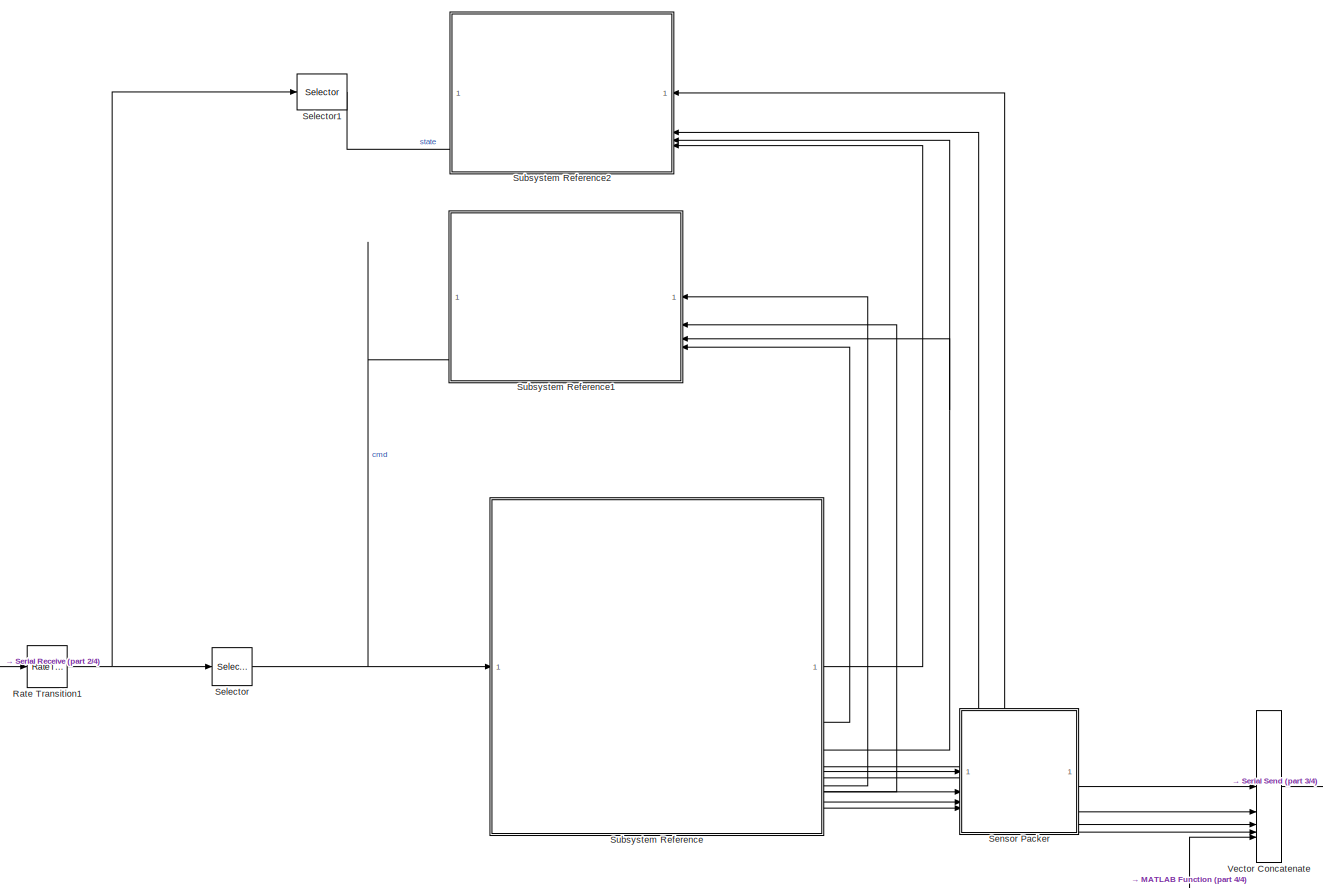
[diagram: root canvas - part 1/4, most of the canvas]
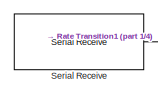
[diagram: root canvas - part 2/4, middle left region]
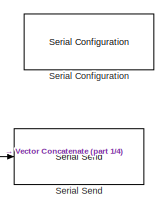
[diagram: root canvas - part 3/4, bottom right region]
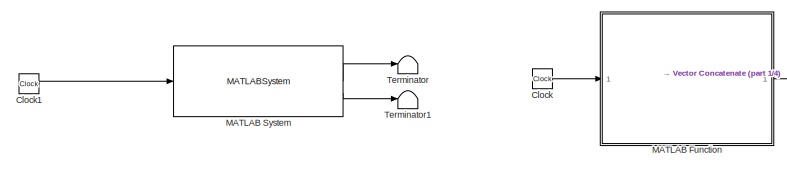
[diagram: root canvas - part 4/4, bottom center region]
MODEL slx_febe281cedd2
KIND model
CONFIG AbsTol = auto
CONFIG EnableMultiTasking = off
CONFIG FixedStep = 0.0025
CONFIG MaxStep = auto
CONFIG MinStep = auto
CONFIG RelTol = 1e-3
CONFIG SampleTimeConstraint = Unconstrained
CONFIG SolverName = ode2
CONFIG StartTime = 0.0
CONFIG StopTime = 100
BLOCK [Clock] Clock
BLOCK [Clock] Clock1
  Commented = on
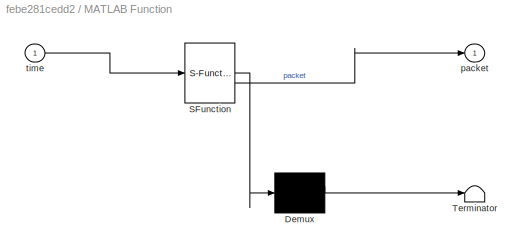
BLOCK [SubSystem] MATLAB Function
  ErrorFcn = Stateflow.Translate.translate
  PermitHierarchicalResolution = ExplicitOnly
  SFBlockType = MATLAB Function
  TreatAsAtomicUnit = on
BLOCK [Demux] MATLAB Function/ Demux 
  Outputs = 1
BLOCK [S-Function] MATLAB Function/ SFunction 
  EnableBusSupport = off
  FunctionName = sf_sfun
  PortCounts = [1 2]
  SFcnIsStateOwnerBlock = off
  SFunctionDeploymentMode = off
  Tag = Stateflow S-Function 2
BLOCK [Terminator] MATLAB Function/ Terminator 
BLOCK [Outport] MATLAB Function/packet
BLOCK [Inport] MATLAB Function/time
BLOCK [MATLABSystem] MATLAB System
  Commented = on
  FileName = wall_step_log.mat
  MaskType = WallStepLogger
  MaxSamples = 50000
  SimulateUsing = Code generation
  System = WallStepLogger
  Ts = 0.0025
BLOCK [RateTransition] Rate Transition1
  OutPortSampleTime = 0.01
BLOCK [Selector] Selector
  IndexOptions = Index vector (dialog)
  Indices = [1]
  InputPortWidth = 14
  OutputSizes = 1
BLOCK [Selector] Selector1
  IndexOptions = Index vector (dialog)
  Indices = [2:14]
  InputPortWidth = 14
  OutputSizes = 1
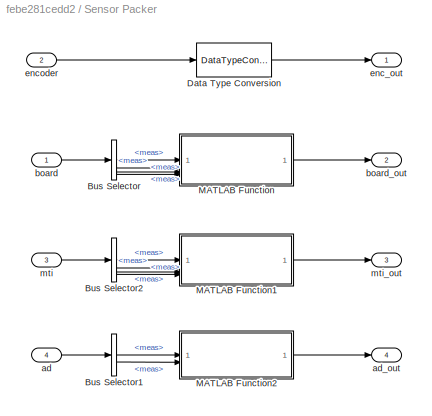
BLOCK [SubSystem] Sensor Packer
BLOCK [BusSelector] Sensor Packer/Bus Selector
  OutputSignals = board_accel.meas,board_gyro.meas,board_mag.meas,board_baro.meas
BLOCK [BusSelector] Sensor Packer/Bus Selector1
  OutputSignals = ad_accel.meas,ad_gyro.meas
BLOCK [BusSelector] Sensor Packer/Bus Selector2
  OutputSignals = mti_accel.meas,mti_gyro.meas,mti_mag.meas,mti_baro.meas
BLOCK [DataTypeConversion] Sensor Packer/Data Type Conversion
  OutDataTypeStr = single
  RndMeth = Floor
  SaturateOnIntegerOverflow = off
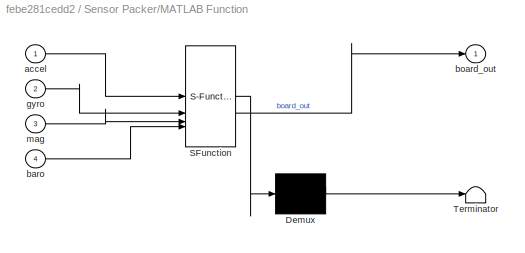
BLOCK [SubSystem] Sensor Packer/MATLAB Function
  ErrorFcn = Stateflow.Translate.translate
  PermitHierarchicalResolution = ExplicitOnly
  SFBlockType = MATLAB Function
  TreatAsAtomicUnit = on
BLOCK [Demux] Sensor Packer/MATLAB Function/ Demux 
  Outputs = 1
BLOCK [S-Function] Sensor Packer/MATLAB Function/ SFunction 
  EnableBusSupport = off
  FunctionName = sf_sfun
  PortCounts = [4 2]
  SFcnIsStateOwnerBlock = off
  SFunctionDeploymentMode = off
  Tag = Stateflow S-Function 12
BLOCK [Terminator] Sensor Packer/MATLAB Function/ Terminator 
BLOCK [Inport] Sensor Packer/MATLAB Function/accel
BLOCK [Inport] Sensor Packer/MATLAB Function/baro
  Port = 4
BLOCK [Outport] Sensor Packer/MATLAB Function/board_out
BLOCK [Inport] Sensor Packer/MATLAB Function/gyro
  Port = 2
BLOCK [Inport] Sensor Packer/MATLAB Function/mag
  Port = 3
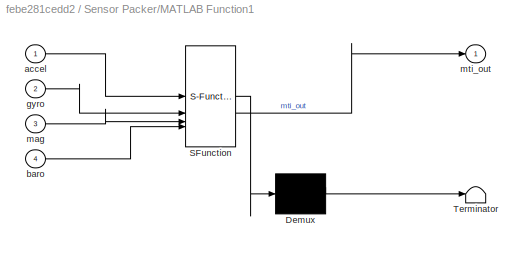
BLOCK [SubSystem] Sensor Packer/MATLAB Function1
  ErrorFcn = Stateflow.Translate.translate
  PermitHierarchicalResolution = ExplicitOnly
  SFBlockType = MATLAB Function
  TreatAsAtomicUnit = on
BLOCK [Demux] Sensor Packer/MATLAB Function1/ Demux 
  Outputs = 1
BLOCK [S-Function] Sensor Packer/MATLAB Function1/ SFunction 
  EnableBusSupport = off
  FunctionName = sf_sfun
  PortCounts = [4 2]
  SFcnIsStateOwnerBlock = off
  SFunctionDeploymentMode = off
  Tag = Stateflow S-Function 14
BLOCK [Terminator] Sensor Packer/MATLAB Function1/ Terminator 
BLOCK [Inport] Sensor Packer/MATLAB Function1/accel
BLOCK [Inport] Sensor Packer/MATLAB Function1/baro
  Port = 4
BLOCK [Inport] Sensor Packer/MATLAB Function1/gyro
  Port = 2
BLOCK [Inport] Sensor Packer/MATLAB Function1/mag
  Port = 3
BLOCK [Outport] Sensor Packer/MATLAB Function1/mti_out
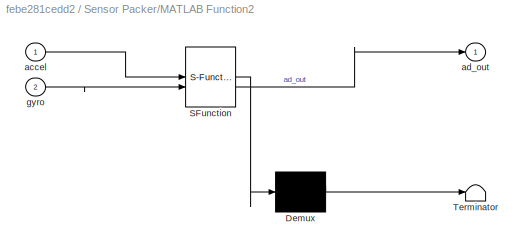
BLOCK [SubSystem] Sensor Packer/MATLAB Function2
  ErrorFcn = Stateflow.Translate.translate
  PermitHierarchicalResolution = ExplicitOnly
  SFBlockType = MATLAB Function
  TreatAsAtomicUnit = on
BLOCK [Demux] Sensor Packer/MATLAB Function2/ Demux 
  Outputs = 1
BLOCK [S-Function] Sensor Packer/MATLAB Function2/ SFunction 
  EnableBusSupport = off
  FunctionName = sf_sfun
  PortCounts = [2 2]
  SFcnIsStateOwnerBlock = off
  SFunctionDeploymentMode = off
  Tag = Stateflow S-Function 15
BLOCK [Terminator] Sensor Packer/MATLAB Function2/ Terminator 
BLOCK [Inport] Sensor Packer/MATLAB Function2/accel
BLOCK [Outport] Sensor Packer/MATLAB Function2/ad_out
BLOCK [Inport] Sensor Packer/MATLAB Function2/gyro
  Port = 2
BLOCK [Inport] Sensor Packer/ad
  Port = 4
BLOCK [Outport] Sensor Packer/ad_out
  Port = 4
BLOCK [Inport] Sensor Packer/board
BLOCK [Outport] Sensor Packer/board_out
  Port = 2
BLOCK [Outport] Sensor Packer/enc_out
BLOCK [Inport] Sensor Packer/encoder
  Port = 2
BLOCK [Inport] Sensor Packer/mti
  Port = 3
BLOCK [Outport] Sensor Packer/mti_out
  Port = 3
BLOCK [Reference] Serial Configuration  REF=instrumentseriallib/Serial Configuration
  LibrarySourceBlock = instrumentlib/Serial Configuration
  Priority = -200000
  SourceBlock = instrumentseriallib/Serial Configuration
  SourceType = system.SerialConfiguration
BLOCK [Reference] Serial Receive  REF=instrumentseriallib/Serial Receive
  LibrarySourceBlock = instrumentlib/Serial Receive
  Priority = 1
  SourceBlock = instrumentseriallib/Serial Receive
  SourceType = system.SerialReceive
BLOCK [Reference] Serial Send  REF=instrumentseriallib/Serial Send
  LibrarySourceBlock = instrumentlib/Serial Send
  Priority = 1
  SourceBlock = instrumentseriallib/Serial Send
  SourceType = system.SerialSend
BLOCK [SubSystem] Subsystem Reference
  ReferencedSubsystem = rocket_plant_combined
BLOCK [SubSystem] Subsystem Reference1
  NameLocation = top
  PortSchema = {"entries":[{"content":{"sides":[{"content":{"connectorIds":["In3","In2","In1","In4"]},"type":"ConnectorPlacement.EquallySpacedRectSide","uuid":"07edd2fa-c1af-49f0-85b4-da0d8bfbf4c9"},{"content":{"connectorIds":["In7","In6","In5"],"side":"RIGHT"},"type":"ConnectorPlacement.EquallySpacedRectSide","uuid":"a0f1597a-4d1b-491e-86e7-6b2cec20e85b"},{"content":{"side":"TOP"},"type":"ConnectorPlacement.Equ...<+251ch>
  ReferencedSubsystem = visualization_ctrl
BLOCK [SubSystem] Subsystem Reference2
  NameLocation = top
  PortSchema = {"entries":[{"content":{"sides":[{"content":{"connectorIds":["In2","In1","In3","In4","In5"]},"type":"ConnectorPlacement.EquallySpacedRectSide","uuid":"63418435-26e7-4081-a8ba-c9f63b0d2d00"},{"content":{"connectorIds":["In6"],"side":"RIGHT"},"type":"ConnectorPlacement.EquallySpacedRectSide","uuid":"46e8966f-26fa-4b73-9d8f-4ac7320c08de"},{"content":{"side":"TOP"},"type":"ConnectorPlacement.EquallySp...<+245ch>
  ReferencedSubsystem = visualization_nav
BLOCK [Terminator] Terminator
  Commented = on
BLOCK [Terminator] Terminator1
  Commented = on
BLOCK [Concatenate] Vector Concatenate
  NumInputs = 5
LINE Clock1:1 -> MATLAB System:1
LINE Clock:1 -> MATLAB Function:1
LINE MATLAB Function:1 -> Vector Concatenate:5
LINE MATLAB System:1 -> Terminator:1
LINE MATLAB System:2 -> Terminator1:1
NET Rate Transition1:1 -> Selector1:1, Selector:1
LINE Selector1:1 -> Subsystem Reference2:6
NET Selector:1 -> Subsystem Reference1:7, Subsystem Reference:1
LINE Sensor Packer/Bus Selector1:1 -> Sensor Packer/MATLAB Function2:1
LINE Sensor Packer/Bus Selector1:2 -> Sensor Packer/MATLAB Function2:2
LINE Sensor Packer/Bus Selector2:1 -> Sensor Packer/MATLAB Function1:1
LINE Sensor Packer/Bus Selector2:2 -> Sensor Packer/MATLAB Function1:2
LINE Sensor Packer/Bus Selector2:3 -> Sensor Packer/MATLAB Function1:3
LINE Sensor Packer/Bus Selector2:4 -> Sensor Packer/MATLAB Function1:4
LINE Sensor Packer/Bus Selector:1 -> Sensor Packer/MATLAB Function:1
LINE Sensor Packer/Bus Selector:2 -> Sensor Packer/MATLAB Function:2
LINE Sensor Packer/Bus Selector:3 -> Sensor Packer/MATLAB Function:3
LINE Sensor Packer/Bus Selector:4 -> Sensor Packer/MATLAB Function:4
LINE Sensor Packer/Data Type Conversion:1 -> Sensor Packer/enc_out:1
LINE Sensor Packer/MATLAB Function1:1 -> Sensor Packer/mti_out:1
LINE Sensor Packer/MATLAB Function2:1 -> Sensor Packer/ad_out:1
LINE Sensor Packer/MATLAB Function:1 -> Sensor Packer/board_out:1
LINE Sensor Packer/ad:1 -> Sensor Packer/Bus Selector1:1
LINE Sensor Packer/board:1 -> Sensor Packer/Bus Selector:1
LINE Sensor Packer/encoder:1 -> Sensor Packer/Data Type Conversion:1
LINE Sensor Packer/mti:1 -> Sensor Packer/Bus Selector2:1
LINE Sensor Packer:1 -> Vector Concatenate:1
LINE Sensor Packer:2 -> Vector Concatenate:2
LINE Sensor Packer:3 -> Vector Concatenate:3
LINE Sensor Packer:4 -> Vector Concatenate:4
LINE Serial Receive:1 -> Rate Transition1:1
LINE Subsystem Reference:1 -> Subsystem Reference2:5
LINE Subsystem Reference:10 -> Sensor Packer:3
LINE Subsystem Reference:11 -> Sensor Packer:4
LINE Subsystem Reference:2 -> Subsystem Reference1:4
NET Subsystem Reference:3 -> Subsystem Reference1:3, Subsystem Reference2:4
LINE Subsystem Reference:4 -> Subsystem Reference2:3
LINE Subsystem Reference:5 -> Subsystem Reference2:1
LINE Subsystem Reference:6 -> Subsystem Reference1:1
LINE Subsystem Reference:7 -> Subsystem Reference1:2
LINE Subsystem Reference:8 -> Sensor Packer:1
LINE Subsystem Reference:9 -> Sensor Packer:2
LINE Vector Concatenate:1 -> Serial Send:1
note: NET lines group one-source signal fan-out (src -> all destinations, sorted); 1:1 wires keep LINE
CHART MATLAB Function states=1 transitions=1
  STATE_LABEL 'eML_blk_kernel()'
  STATE_LABEL 'SCRIPT:\nfunction packet  = hil_event_scheduler(time)\n\n    t_hold = 0.1;\n    \n    % Command IDs\n    CMD_NONE       = 0;\n    CMD_LAUNCH     = 1;\n    CMD_IGNITER    = 2;\n    CMD_PAD_FILTER = 3;\n    \n    % Event schedule\n    event_times = [10.0, 28.0, 30.0];   % seconds\n    \n    event_cmds = [ ...\n        CMD_PAD_FILTER, ...\n        CMD_IGNITER, ...\n        CMD_LAUNCH ...\n    ];\n    \n    cmd_id = CMD_...<+232ch>'
CHART Sensor Packer/MATLAB Function states=1 transitions=1
  STATE_LABEL 'eML_blk_kernel()'
  STATE_LABEL "SCRIPT:\nfunction board_out = board_parse(accel, gyro, mag, baro)\n    \n    persistent k\n\n    if isempty(k)\n        k = 3;\n    end\n\n    if k <= 0\n        stat_mag = 1;\n        stat_baro = 1;\n        k = 3;\n    else\n        stat_mag = 0;\n        stat_baro = 0;\n        k = k - 1;\n    end\n\n\n    board_out = zeros(1, 14, 'single');\n    board_out(1:3) = accel;\n    board_out(4) = 1; % accel status\n    boar...<+160ch>"
CHART Sensor Packer/MATLAB Function1 states=1 transitions=1
  STATE_LABEL 'eML_blk_kernel()'
  STATE_LABEL "SCRIPT:\nfunction mti_out = mti_parse(accel, gyro, mag, baro)\n    \n    persistent k\n\n    if isempty(k)\n        k = 3;\n    end\n\n    if k <= 0\n        stat_mag = 1;\n        stat_baro = 1;\n        k = 3;\n    else\n        stat_mag = 0;\n        stat_baro = 0;\n        k = k - 1;\n    end\n\n\n    mti_out = zeros(1, 14, 'single');\n    mti_out(1:3) = accel;\n    mti_out(4) = 1; % accel status\n    mti_out(5:7) =...<+138ch>"
CHART Sensor Packer/MATLAB Function2 states=1 transitions=1
  STATE_LABEL 'eML_blk_kernel()'
  STATE_LABEL "SCRIPT:\nfunction ad_out = ad_parse(accel, gyro)\n\n    ad_out = zeros(1, 8, 'single');\n    ad_out(1:3) = accel;\n    ad_out(4) = 1; % accel status\n    ad_out(5:7) = gyro;\n    ad_out(8) = 1;\n\nend\n"
CHART  states=0 transitions=0
CHART  states=0 transitions=0
CHART  states=0 transitions=0
CHART  states=0 transitions=0
